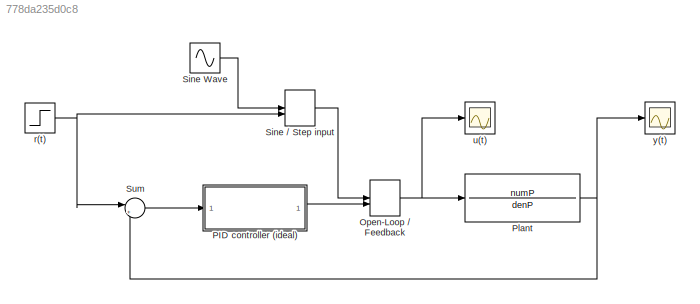
MODEL slx_778da235d0c8
KIND model
CONFIG AbsTol = auto
CONFIG EnableMultiTasking = off
CONFIG FixedStep = 0.01
CONFIG MaxStep = auto
CONFIG MinStep = auto
CONFIG RelTol = 1e-3
CONFIG SampleTimeConstraint = Unconstrained
CONFIG SolverName = ode3
CONFIG StartTime = 0.0
CONFIG StopTime = 1000
BLOCK [ManualSwitch] Open-Loop // Feedback
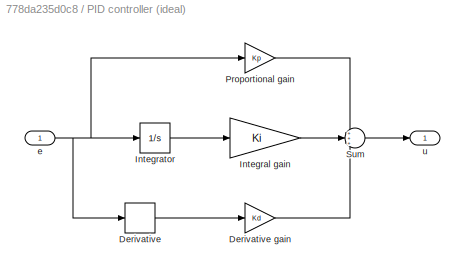
BLOCK [SubSystem] PID controller (ideal)
BLOCK [Derivative] PID controller (ideal)/Derivative
BLOCK [Gain] PID controller (ideal)/Derivative gain
  Gain = Kd
BLOCK [Gain] PID controller (ideal)/Integral gain
  Gain = Ki
BLOCK [Integrator] PID controller (ideal)/Integrator
BLOCK [Gain] PID controller (ideal)/Proportional gain
  Gain = Kp
BLOCK [Sum] PID controller (ideal)/Sum
  Inputs = +++
BLOCK [Inport] PID controller (ideal)/e
BLOCK [Outport] PID controller (ideal)/u
BLOCK [TransferFcn] Plant
  Denominator = denP
  Numerator = numP
BLOCK [ManualSwitch] Sine // Step input
  NameLocation = top
BLOCK [Sin] Sine Wave
  Frequency = 0.241
  SampleTime = 0
BLOCK [Sum] Sum
  Inputs = |+-
BLOCK [Step] r(t)
  SampleTime = 0
  Time = 0
BLOCK [Scope] u(t)
  Floating = off
  NumInputPorts = 1
  ScopeSpecificationString = Simulink.scopes.TimeScopeBlockCfg('CurrentConfiguration', extmgr.ConfigurationSet(extmgr.Configuration('Core','General UI',true),extmgr.Configuration('Core','Source UI',true),extmgr.Configuration('Sources','WiredSimulink',true,'DataLoggingVariableName','ScopeData1'),extmgr.Configuration('Visuals','Time Domain',true,'SerializedDisplays',{struct('MinYLimReal','-29564433301302483840931741362246114175...<+3831ch>
BLOCK [Scope] y(t)
  Floating = off
  NumInputPorts = 1
  ScopeSpecificationString = Simulink.scopes.TimeScopeBlockCfg('CurrentConfiguration', extmgr.ConfigurationSet(extmgr.Configuration('Core','General UI',true),extmgr.Configuration('Core','Source UI',true),extmgr.Configuration('Sources','WiredSimulink',true),extmgr.Configuration('Visuals','Time Domain',true,'SerializedDisplays',{struct('MinYLimReal','-1226.17899','MaxYLimReal','1226.1829','YLabelReal','','MinYLimMag','  0.00000...<+1399ch>
NET Open-Loop // Feedback:1 -> Plant:1, u(t):1
LINE PID controller (ideal)/Derivative gain:1 -> PID controller (ideal)/Sum:3
LINE PID controller (ideal)/Derivative:1 -> PID controller (ideal)/Derivative gain:1
LINE PID controller (ideal)/Integral gain:1 -> PID controller (ideal)/Sum:2
LINE PID controller (ideal)/Integrator:1 -> PID controller (ideal)/Integral gain:1
LINE PID controller (ideal)/Proportional gain:1 -> PID controller (ideal)/Sum:1
LINE PID controller (ideal)/Sum:1 -> PID controller (ideal)/u:1
NET PID controller (ideal)/e:1 -> PID controller (ideal)/Derivative:1, PID controller (ideal)/Integrator:1, PID controller (ideal)/Proportional gain:1
LINE PID controller (ideal):1 -> Open-Loop // Feedback:2
NET Plant:1 -> Sum:2, y(t):1
LINE Sine // Step input:1 -> Open-Loop // Feedback:1
LINE Sine Wave:1 -> Sine // Step input:1
LINE Sum:1 -> PID controller (ideal):1
NET r(t):1 -> Sine // Step input:2, Sum:1
note: NET lines group one-source signal fan-out (src -> all destinations, sorted); 1:1 wires keep LINE
